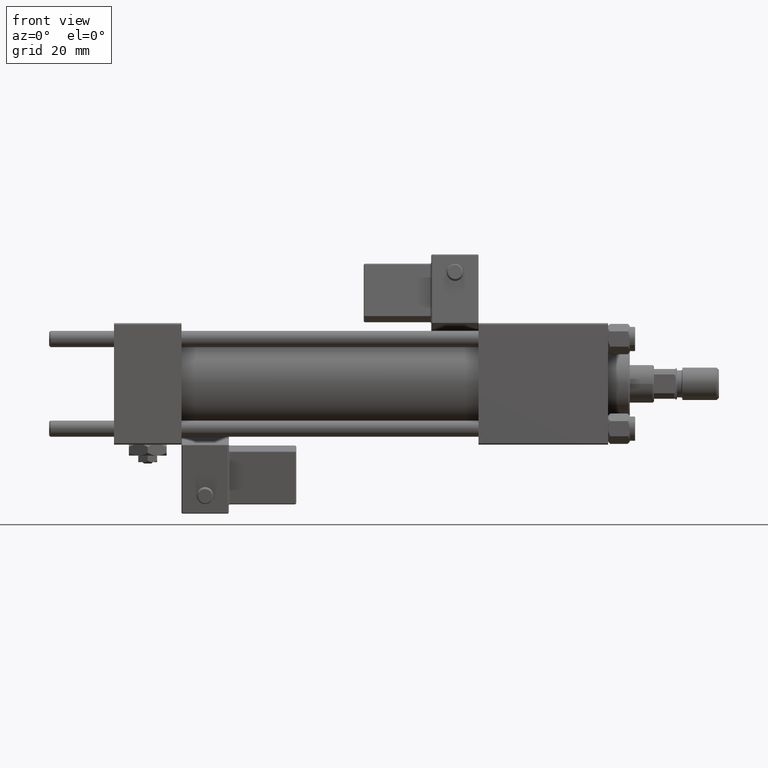
[diagram: clean part render]
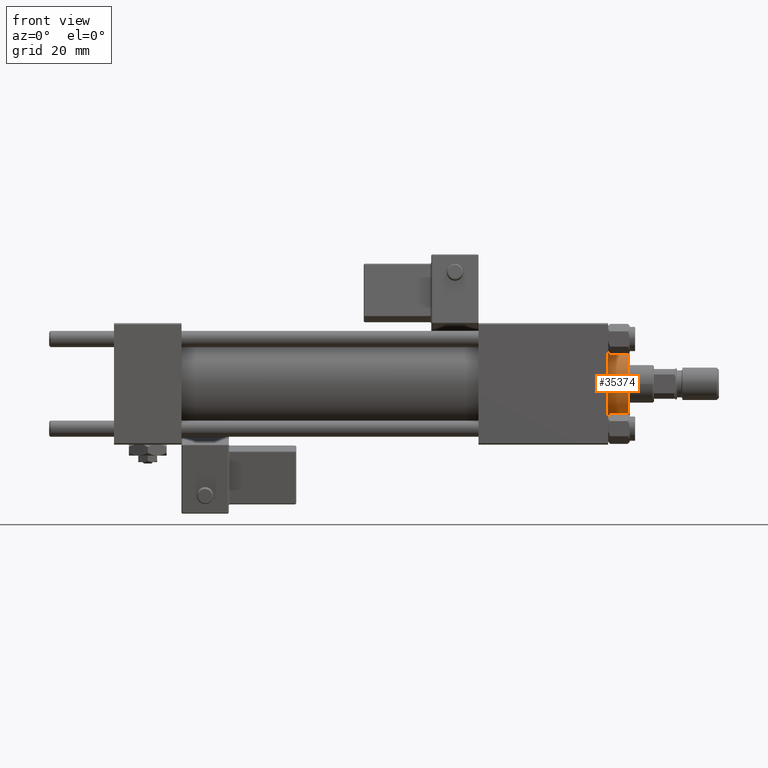
[diagram: same view with one face highlighted and labeled with its STEP entity id]
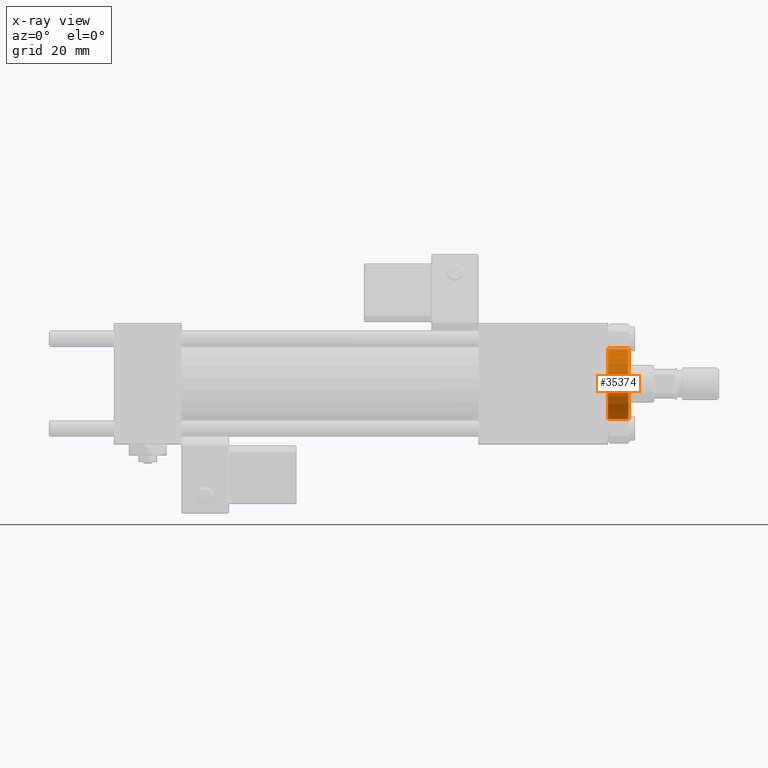
[diagram: x-ray of the same camera — body ghosted, the highlighted face saturated]
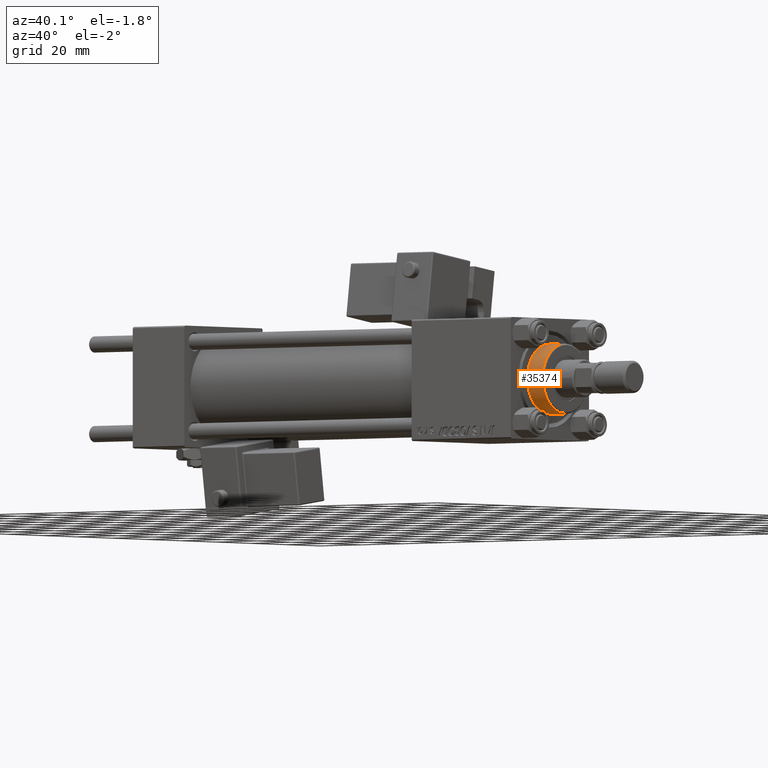
[diagram: same view with one face highlighted and labeled with its STEP entity id]
A machine part, front view. The second image highlights one B-rep face of the part: STEP entity #35374.
The next image is the same camera in x-ray: the body ghosted, the highlighted face saturated — about 0% of this face is hidden behind the body in this view.
A second angle (auxiliary view) of the same face is appended — the face is thin or edge-on in the first view.
In plain terms, the highlighted cylindrical surface (edge-blend (fillet) strip) has radius 13 mm, axis along (-1, -0, 0).
Its self-contained STEP definition (entity closure, byte-faithful):
#1076 = ORIENTED_EDGE ( 'NONE', *, *, #49675, .T. ) ;
#1446 = VECTOR ( 'NONE', #39075, 1000.000000000000000 ) ;
#2227 = EDGE_LOOP ( 'NONE', ( #24697, #10703, #16512, #1076 ) ) ;
#4681 = CARTESIAN_POINT ( 'NONE',  ( 0.000000000000000000, 0.000000000000000000, 36.20000000000000995 ) ) ;
#5468 = CARTESIAN_POINT ( 'NONE',  ( 0.000000000000000000, 0.000000000000000000, 36.69999999999999574 ) ) ;
#6900 = CARTESIAN_POINT ( 'NONE',  ( 13.00000000000000178, 1.592040838891559293E-15, 28.69999999999999929 ) ) ;
#7449 = CARTESIAN_POINT ( 'NONE',  ( -13.00000000000000178, 0.000000000000000000, 28.69999999999999929 ) ) ;
#8602 = FACE_OUTER_BOUND ( 'NONE', #2227, .T. ) ;
#10703 = ORIENTED_EDGE ( 'NONE', *, *, #49803, .T. ) ;
#11323 = DIRECTION ( 'NONE',  ( 0.000000000000000000, 0.000000000000000000, 1.000000000000000000 ) ) ;
#13731 = CYLINDRICAL_SURFACE ( 'NONE', #19983, 13.00000000000000178 ) ;
#16512 = ORIENTED_EDGE ( 'NONE', *, *, #21417, .T. ) ;
#18078 = DIRECTION ( 'NONE',  ( 0.000000000000000000, 0.000000000000000000, -1.000000000000000000 ) ) ;
#19578 = CIRCLE ( 'NONE', #33618, 13.00000000000000178 ) ;
#19838 = CARTESIAN_POINT ( 'NONE',  ( 0.000000000000000000, 0.000000000000000000, 28.69999999999999929 ) ) ;
#19983 = AXIS2_PLACEMENT_3D ( 'NONE', #5468, #30494, #50343 ) ;
#21417 = EDGE_CURVE ( 'NONE', #53962, #21509, #26448, .T. ) ;
#21509 = VERTEX_POINT ( 'NONE', #7449 ) ;
#22331 = CARTESIAN_POINT ( 'NONE',  ( -13.00000000000000178, 0.000000000000000000, 36.69999999999999574 ) ) ;
#22564 = CARTESIAN_POINT ( 'NONE',  ( 13.00000000000000178, 1.592040838891559293E-15, 36.69999999999999574 ) ) ;
#23245 = VERTEX_POINT ( 'NONE', #6900 ) ;
#24319 = VERTEX_POINT ( 'NONE', #29824 ) ;
#24697 = ORIENTED_EDGE ( 'NONE', *, *, #31470, .F. ) ;
#26448 = LINE ( 'NONE', #22331, #1446 ) ;
#28706 = CARTESIAN_POINT ( 'NONE',  ( -13.00000000000000178, 0.000000000000000000, 36.20000000000000995 ) ) ;
#29824 = CARTESIAN_POINT ( 'NONE',  ( 13.00000000000000178, 1.592040838891559293E-15, 36.20000000000000995 ) ) ;
#30494 = DIRECTION ( 'NONE',  ( -0.000000000000000000, -0.000000000000000000, -1.000000000000000000 ) ) ;
#31080 = DIRECTION ( 'NONE',  ( -0.000000000000000000, -0.000000000000000000, -1.000000000000000000 ) ) ;
#31470 = EDGE_CURVE ( 'NONE', #24319, #23245, #39857, .T. ) ;
#31860 = CIRCLE ( 'NONE', #44995, 13.00000000000000178 ) ;
#33618 = AXIS2_PLACEMENT_3D ( 'NONE', #19838, #11323, #48384 ) ;
#35374 = ADVANCED_FACE ( 'NONE', ( #8602 ), #13731, .T. ) ;
#39075 = DIRECTION ( 'NONE',  ( -0.000000000000000000, -0.000000000000000000, -1.000000000000000000 ) ) ;
#39857 = LINE ( 'NONE', #22564, #50653 ) ;
#44995 = AXIS2_PLACEMENT_3D ( 'NONE', #4681, #18078, #54122 ) ;
#48384 = DIRECTION ( 'NONE',  ( 1.000000000000000000, 0.000000000000000000, 0.000000000000000000 ) ) ;
#49675 = EDGE_CURVE ( 'NONE', #21509, #23245, #19578, .T. ) ;
#49803 = EDGE_CURVE ( 'NONE', #24319, #53962, #31860, .T. ) ;
#50343 = DIRECTION ( 'NONE',  ( -1.000000000000000000, 0.000000000000000000, 0.000000000000000000 ) ) ;
#50653 = VECTOR ( 'NONE', #31080, 1000.000000000000000 ) ;
#53962 = VERTEX_POINT ( 'NONE', #28706 ) ;
#54122 = DIRECTION ( 'NONE',  ( 1.000000000000000000, 0.000000000000000000, 0.000000000000000000 ) ) ;